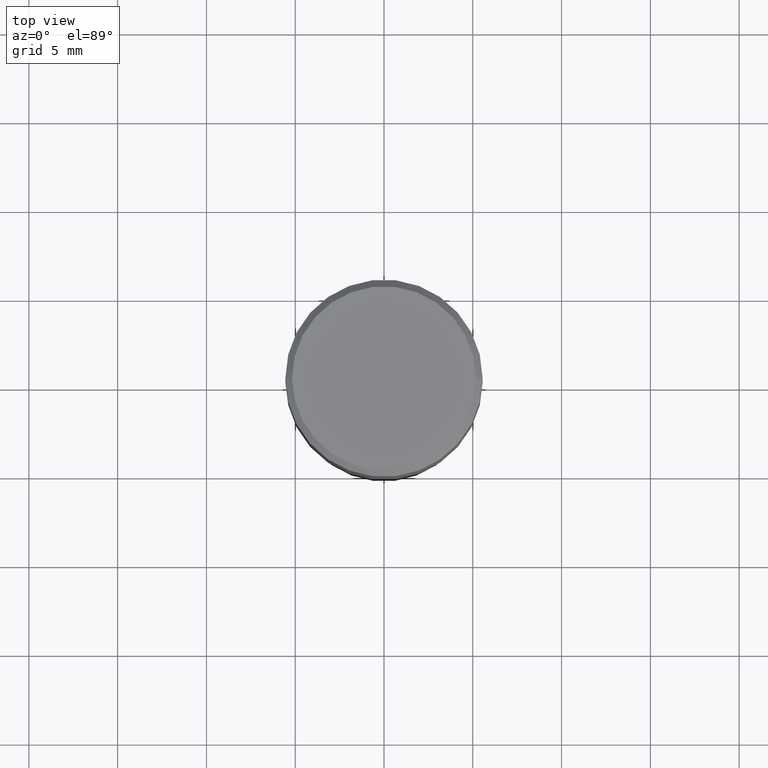
[diagram: clean part render]
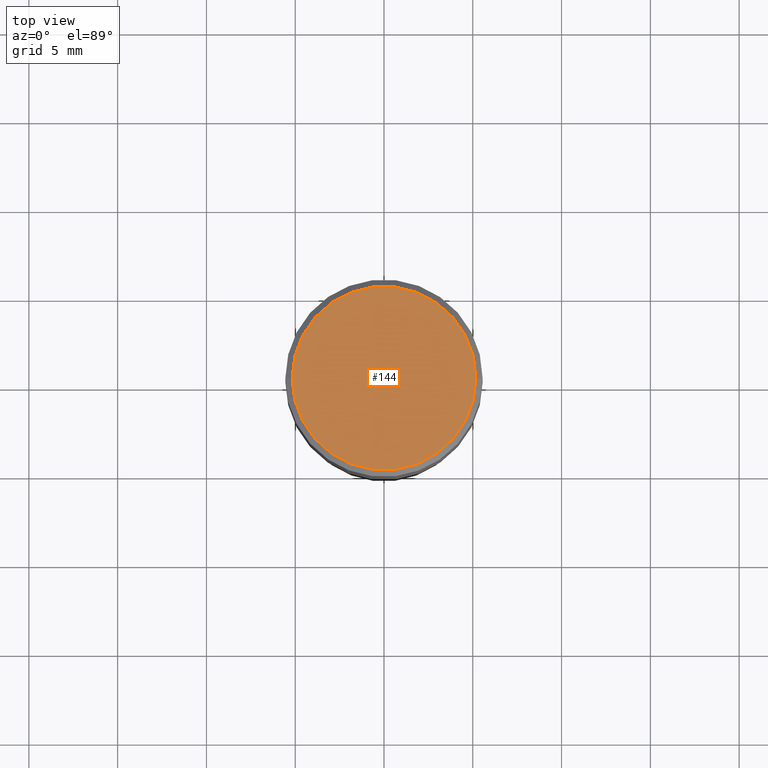
[diagram: same view with one face highlighted and labeled with its STEP entity id]
A machine part, top view. The second image highlights one B-rep face of the part: STEP entity #144.
In plain terms, the highlighted planar face has unit normal (0, -0, -1).
Its self-contained STEP definition (entity closure, byte-faithful):
#39 = FACE_OUTER_BOUND ( 'NONE', #328, .T. ) ;
#41 = DIRECTION ( 'NONE',  ( -1.000000000000000000, 6.982962677686265922E-15, -4.876176775795935793E-29 ) ) ;
#43 = CARTESIAN_POINT ( 'NONE',  ( -2.592568563193567003E-45, 3.701500806376036554E-31, 1.060151966214568974E-16 ) ) ;
#45 = CIRCLE ( 'NONE', #432, 0.2037499999999999867 ) ;
#69 = CARTESIAN_POINT ( 'NONE',  ( 1.422778645578576487E-15, 0.2037499999999999867, -6.583817244785623957E-16 ) ) ;
#71 = PLANE ( 'NONE',  #449 ) ;
#83 = ORIENTED_EDGE ( 'NONE', *, *, #175, .T. ) ;
#105 = DIRECTION ( 'NONE',  ( 2.438088387897960049E-29, -3.491481338843145188E-15, -1.000000000000000000 ) ) ;
#107 = DIRECTION ( 'NONE',  ( -2.445468806185136597E-29, 3.491481338843145583E-15, 1.000000000000000000 ) ) ;
#126 = EDGE_CURVE ( 'NONE', #191, #183, #178, .T. ) ;
#128 = AXIS2_PLACEMENT_3D ( 'NONE', #43, #107, #393 ) ;
#144 = ADVANCED_FACE ( 'NONE', ( #39 ), #71, .F. ) ;
#147 = ORIENTED_EDGE ( 'NONE', *, *, #126, .T. ) ;
#175 = EDGE_CURVE ( 'NONE', #183, #191, #45, .T. ) ;
#178 = CIRCLE ( 'NONE', #128, 0.2037499999999999867 ) ;
#183 = VERTEX_POINT ( 'NONE', #219 ) ;
#191 = VERTEX_POINT ( 'NONE', #392 ) ;
#219 = CARTESIAN_POINT ( 'NONE',  ( 0.2037499999999999867, -1.475466312070559275E-15, 1.060151966214670170E-16 ) ) ;
#253 = DIRECTION ( 'NONE',  ( -2.445468806185136597E-29, 3.491481338843145583E-15, 1.000000000000000000 ) ) ;
#287 = CARTESIAN_POINT ( 'NONE',  ( -2.592568563193567003E-45, 3.701500806376036554E-31, 1.060151966214568974E-16 ) ) ;
#328 = EDGE_LOOP ( 'NONE', ( #147, #83 ) ) ;
#392 = CARTESIAN_POINT ( 'NONE',  ( -0.2037499999999999867, 1.448964755619900421E-15, 1.060151966214468518E-16 ) ) ;
#393 = DIRECTION ( 'NONE',  ( 1.000000000000000000, -6.982962677686266711E-15, 4.875065411617369217E-29 ) ) ;
#395 = DIRECTION ( 'NONE',  ( 1.000000000000000000, -6.982962677686266711E-15, 4.875065411617369217E-29 ) ) ;
#432 = AXIS2_PLACEMENT_3D ( 'NONE', #287, #253, #395 ) ;
#449 = AXIS2_PLACEMENT_3D ( 'NONE', #69, #105, #41 ) ;